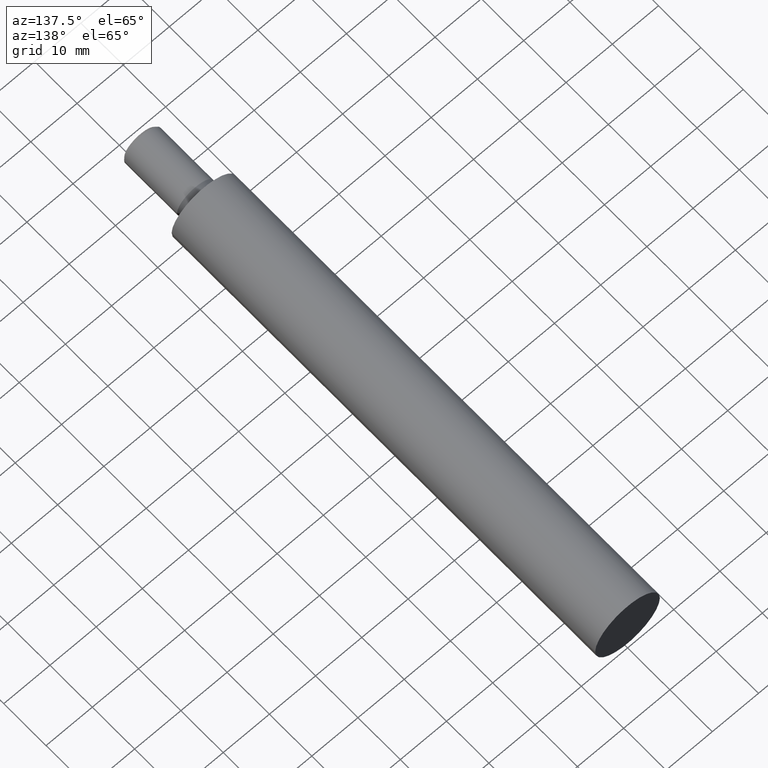
[diagram: clean part render]
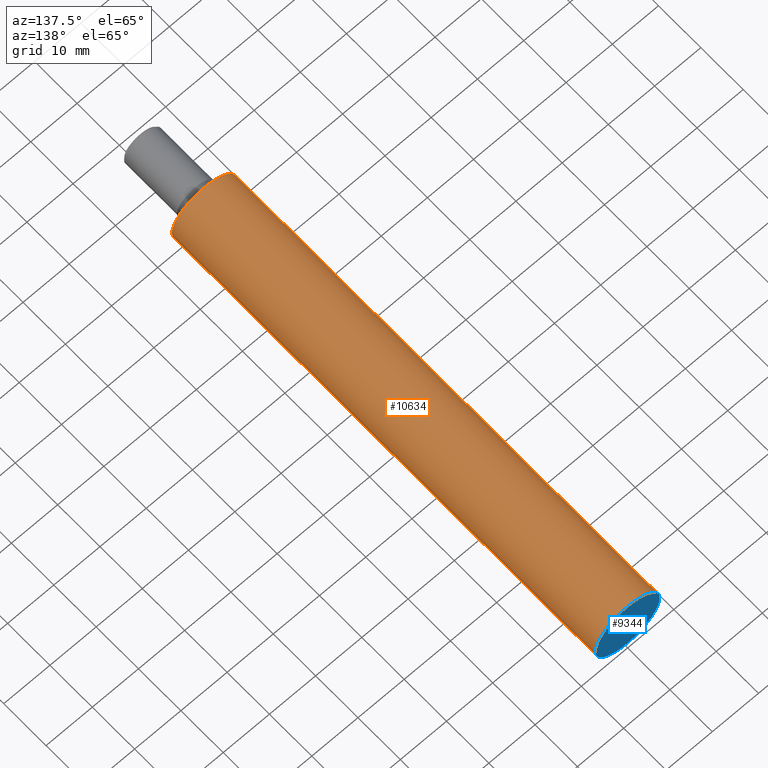
[diagram: same view with the hole feature highlighted: cylindrical wall and planar end face, labeled with their STEP entity ids]
A machine part, auxiliary view. The highlighted faces form one hole feature of diameter 14 mm: the cylindrical wall (entity #10634, orange) and its adjacent planar end face (entity #9344, blue) — they share a circular edge in the B-rep.
Wall:
#85 = EDGE_LOOP ( 'NONE', ( #6657 ) ) ;
#1016 = FACE_OUTER_BOUND ( 'NONE', #6739, .T. ) ;
#1652 = DIRECTION ( 'NONE',  ( 1.000000000000000000, 0.000000000000000000, 0.000000000000000000 ) ) ;
#2646 = CARTESIAN_POINT ( 'NONE',  ( 1.925929944387235853E-31, -15.00000000000000000, 0.000000000000000000 ) ) ;
#2800 = DIRECTION ( 'NONE',  ( 1.674721690771509348E-33, -1.000000000000000000, -0.000000000000000000 ) ) ;
#3284 = VERTEX_POINT ( 'NONE', #4517 ) ;
#3685 = DIRECTION ( 'NONE',  ( 1.674721690771509348E-33, -1.000000000000000000, -0.000000000000000000 ) ) ;
#4517 = CARTESIAN_POINT ( 'NONE',  ( 6.999999999999993783, 100.0000000000000000, 0.000000000000000000 ) ) ;
#5152 = CARTESIAN_POINT ( 'NONE',  ( 0.000000000000000000, 100.0000000000000000, 0.000000000000000000 ) ) ;
#5308 = EDGE_CURVE ( 'NONE', #3284, #3284, #6766, .T. ) ;
#5701 = AXIS2_PLACEMENT_3D ( 'NONE', #8040, #2800, #8181 ) ;
#5992 = CIRCLE ( 'NONE', #5701, 7.000000000000005329 ) ;
#6205 = DIRECTION ( 'NONE',  ( 1.674721690771509348E-33, -1.000000000000000000, -0.000000000000000000 ) ) ;
#6425 = CYLINDRICAL_SURFACE ( 'NONE', #12052, 6.999999999999999112 ) ;
#6657 = ORIENTED_EDGE ( 'NONE', *, *, #11723, .F. ) ;
#6739 = EDGE_LOOP ( 'NONE', ( #8062 ) ) ;
#6766 = CIRCLE ( 'NONE', #11008, 6.999999999999993783 ) ;
#8040 = CARTESIAN_POINT ( 'NONE',  ( 1.674721690771509485E-31, 0.000000000000000000, 0.000000000000000000 ) ) ;
#8062 = ORIENTED_EDGE ( 'NONE', *, *, #5308, .T. ) ;
#8181 = DIRECTION ( 'NONE',  ( 1.000000000000000000, 1.674721690771509348E-33, 0.000000000000000000 ) ) ;
#10242 = FACE_OUTER_BOUND ( 'NONE', #85, .T. ) ;
#10634 = ADVANCED_FACE ( 'NONE', ( #1016, #10242 ), #6425, .T. ) ;
#10748 = CARTESIAN_POINT ( 'NONE',  ( 7.000000000000005329, 1.172305183540057433E-32, 0.000000000000000000 ) ) ;
#11008 = AXIS2_PLACEMENT_3D ( 'NONE', #5152, #6205, #13570 ) ;
#11723 = EDGE_CURVE ( 'NONE', #13498, #13498, #5992, .T. ) ;
#12052 = AXIS2_PLACEMENT_3D ( 'NONE', #2646, #3685, #1652 ) ;
#13498 = VERTEX_POINT ( 'NONE', #10748 ) ;
#13570 = DIRECTION ( 'NONE',  ( 1.000000000000000000, 0.000000000000000000, 0.000000000000000000 ) ) ;
End face:
#1270 = ORIENTED_EDGE ( 'NONE', *, *, #5308, .F. ) ;
#2065 = DIRECTION ( 'NONE',  ( -1.000000000000000000, -1.674721690771509348E-33, 0.000000000000000000 ) ) ;
#3113 = FACE_OUTER_BOUND ( 'NONE', #11663, .T. ) ;
#3284 = VERTEX_POINT ( 'NONE', #4517 ) ;
#3815 = AXIS2_PLACEMENT_3D ( 'NONE', #9543, #7328, #2065 ) ;
#4517 = CARTESIAN_POINT ( 'NONE',  ( 6.999999999999993783, 100.0000000000000000, 0.000000000000000000 ) ) ;
#5152 = CARTESIAN_POINT ( 'NONE',  ( 0.000000000000000000, 100.0000000000000000, 0.000000000000000000 ) ) ;
#5308 = EDGE_CURVE ( 'NONE', #3284, #3284, #6766, .T. ) ;
#6205 = DIRECTION ( 'NONE',  ( 1.674721690771509348E-33, -1.000000000000000000, -0.000000000000000000 ) ) ;
#6766 = CIRCLE ( 'NONE', #11008, 6.999999999999993783 ) ;
#7328 = DIRECTION ( 'NONE',  ( -1.674721690771509348E-33, 1.000000000000000000, 0.000000000000000000 ) ) ;
#9344 = ADVANCED_FACE ( 'NONE', ( #3113 ), #12568, .T. ) ;
#9543 = CARTESIAN_POINT ( 'NONE',  ( 9.816424595392032678E-66, 100.0000000000000000, 0.000000000000000000 ) ) ;
#11008 = AXIS2_PLACEMENT_3D ( 'NONE', #5152, #6205, #13570 ) ;
#11663 = EDGE_LOOP ( 'NONE', ( #1270 ) ) ;
#12568 = PLANE ( 'NONE',  #3815 ) ;
#13570 = DIRECTION ( 'NONE',  ( 1.000000000000000000, 0.000000000000000000, 0.000000000000000000 ) ) ;